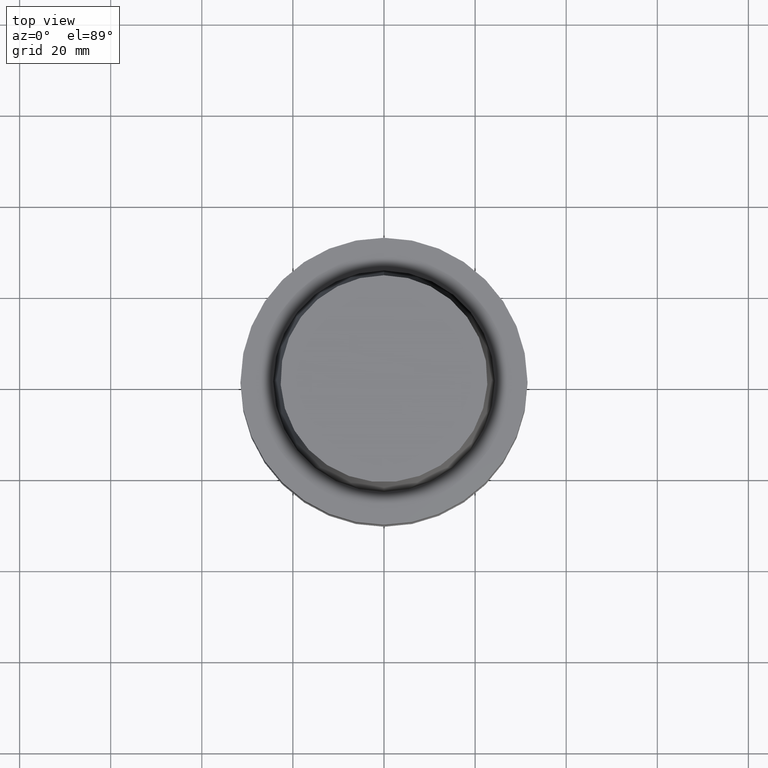
[diagram: clean part render]
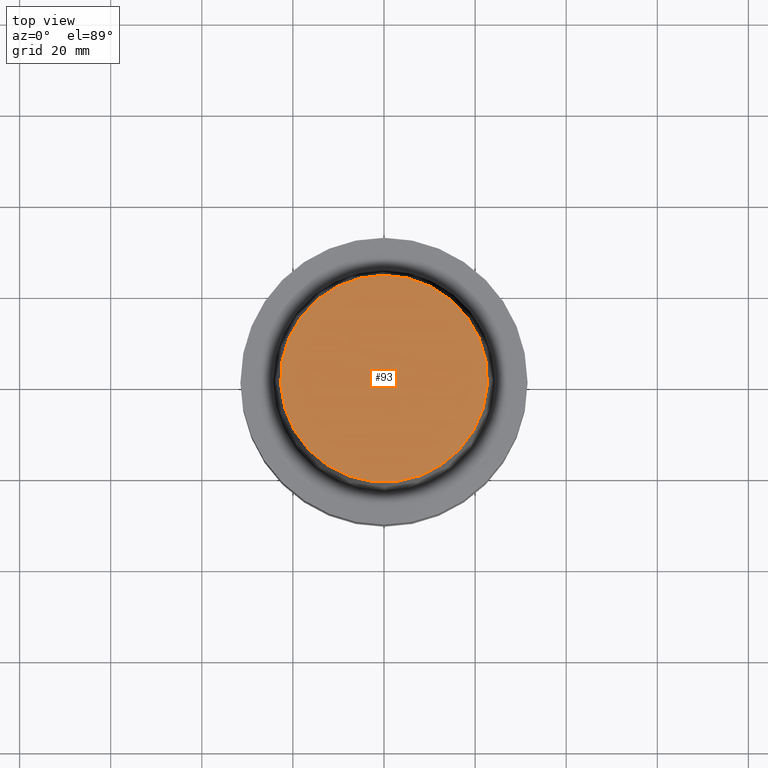
[diagram: same view with one face highlighted and labeled with its STEP entity id]
A machine part, top view. The second image highlights one B-rep face of the part: STEP entity #93.
In plain terms, the highlighted planar face has unit normal (-0, 0, 1).
Its self-contained STEP definition (entity closure, byte-faithful):
#93=ADVANCED_FACE('Unnamed[1]',(#213),#214,.T.);
#128=EDGE_CURVE('Unnamed[1]',#268,#268,#269,.T.);
#213=FACE_OUTER_BOUND('',#367,.T.);
#214=PLANE('',#368);
#268=VERTEX_POINT('',#436);
#269=CIRCLE('',#437,22.715);
#367=EDGE_LOOP('',(#523));
#368=AXIS2_PLACEMENT_3D('',#524,#525,#526);
#436=CARTESIAN_POINT('',(-1.95943487863576E-015,22.715,32.0));
#437=AXIS2_PLACEMENT_3D('',#586,#587,#588);
#523=ORIENTED_EDGE('',*,*,#128,.F.);
#524=CARTESIAN_POINT('',(-1.95943487863576E-015,11.3575,32.0));
#525=DIRECTION('',(-6.12323399573677E-017,9.72362339746437E-016,1.0));
#526=DIRECTION('',(-5.47128686183263E-032,-1.0,9.72362339746437E-016));
#586=CARTESIAN_POINT('',(-1.95943487863576E-015,-3.91886975727153E-015,32.0));
#587=DIRECTION('',(6.12323399573676E-017,1.22464679914735E-016,-1.0));
#588=DIRECTION('',(-1.23259516440783E-032,1.0,1.22464679914735E-016));